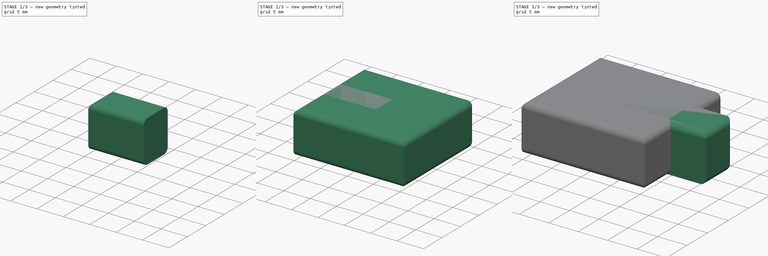
[diagram: build sequence overview — one tinted view per stage of 3, left to right]
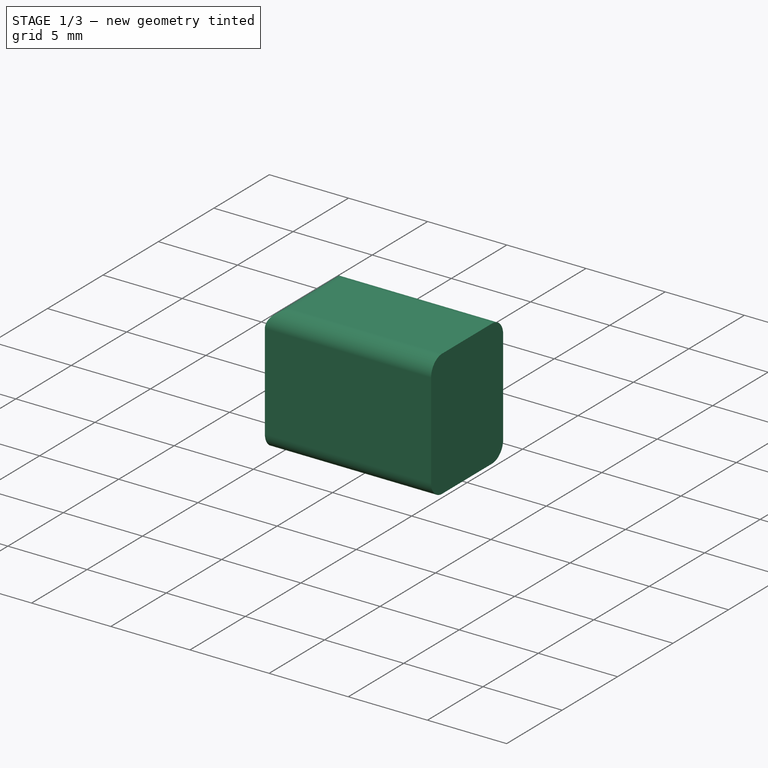
[diagram: stage 1 of 3 — iso view after this stage's code; geometry added in this stage tinted green]
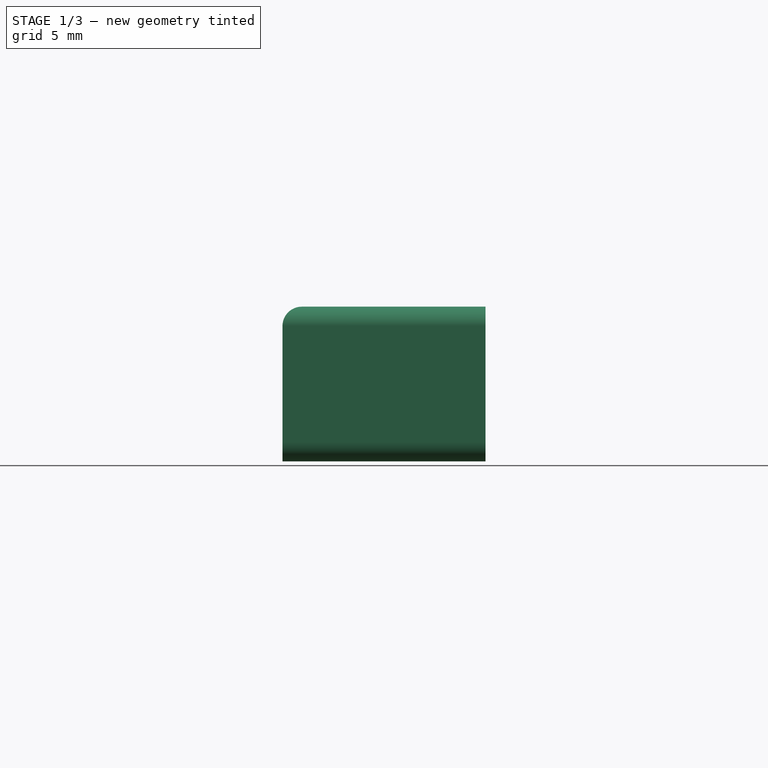
[diagram: stage 1 of 3 — front view after this stage's code; geometry added in this stage tinted green]
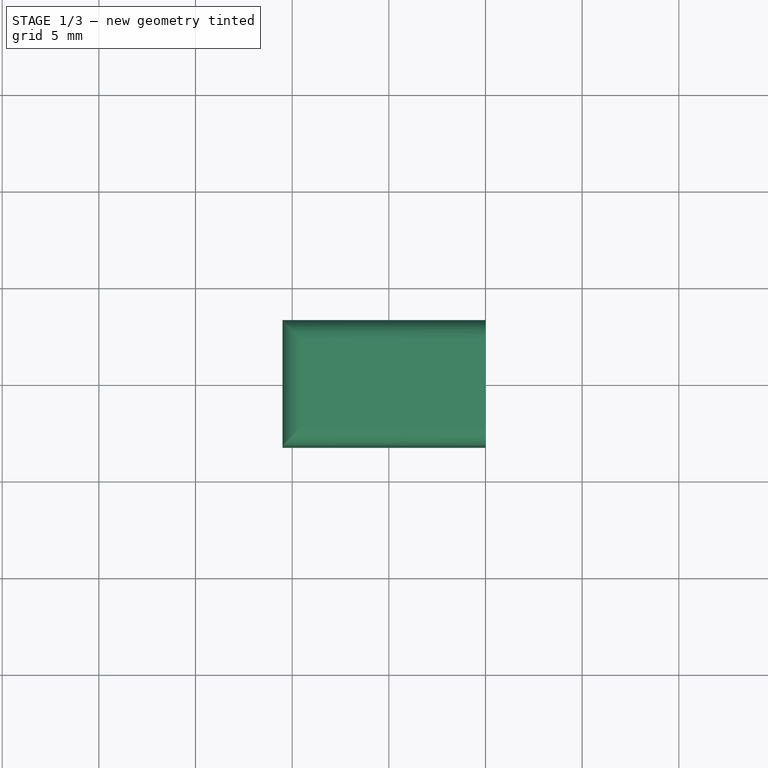
[diagram: stage 1 of 3 — top view after this stage's code; geometry added in this stage tinted green]
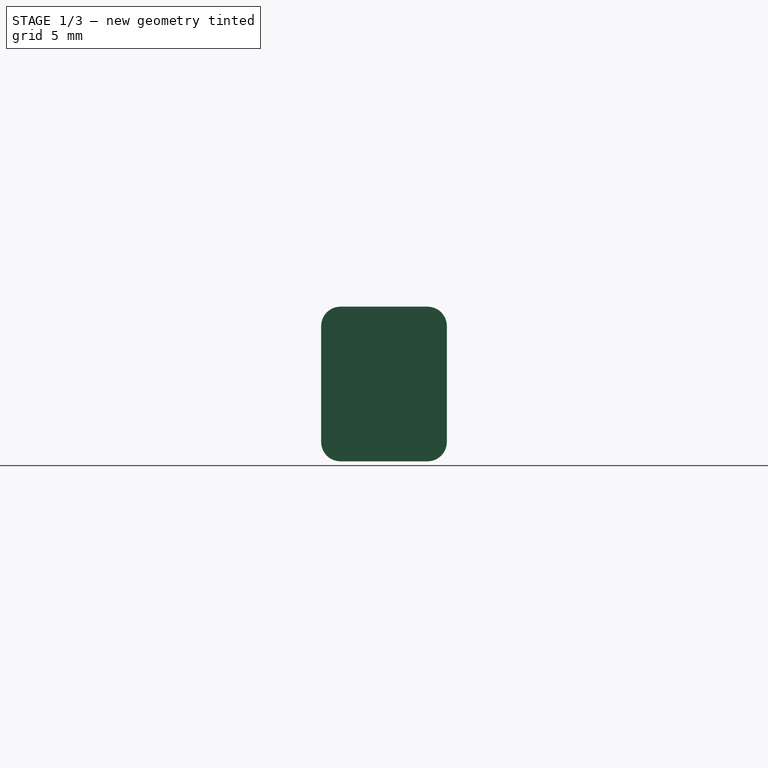
[diagram: stage 1 of 3 — right view after this stage's code; geometry added in this stage tinted green]
FCSTD DOCUMENT  (FreeCAD 0.19R24276 (Git))
Label: Mold2
License: All rights reserved
LicenseURL: http://en.wikipedia.org/wiki/All_rights_reserved
objects: Sketcher::SketchObject×3, Part::Extrusion×3, Part::Fillet×3, Spreadsheet::Sheet×1
note: 9 computed .brp shape members not serialized (recipe doc carries the construction recipe); baked Part::Feature solids carry a one-line shape summary decoded from their .brp

FEATURE [Sketcher::SketchObject] Sketch001
  FullyConstrained = true
  MapMode = 5
  expr: Constraints[10] = Spreadsheet.right_length + Spreadsheet.length / 2
  expr: Constraints[7] = Spreadsheet.right_width
  sketch-geometry (4):
    g0: LineSegment StartX=-10.5 StartY=3.25 StartZ=0 EndX=0 EndY=3.25 EndZ=0
    g1: LineSegment StartX=0 StartY=3.25 StartZ=0 EndX=0 EndY=-3.25 EndZ=0
    g2: LineSegment StartX=0 StartY=-3.25 StartZ=0 EndX=-10.5 EndY=-3.25 EndZ=0
    g3: LineSegment StartX=-10.5 StartY=-3.25 StartZ=0 EndX=-10.5 EndY=3.25 EndZ=0
  constraints (11):
    c: Coincident(g0,g1)
    c: Coincident(g1,g2)
    c: Coincident(g2,g3)
    c: Coincident(g3,g0)
    c: Horizontal(g0)
    c: Horizontal(g2)
    c: Vertical(g1)
    c: DistanceY(g2,g0) = 6.5
    c: Symmetric(g2,g0,g-1)
    c: DistanceX(g0,g-1) = 0
    c: DistanceX(g2,g1) = 10.5
FEATURE [Part::Extrusion] Extrude001
  Base = -> Sketch001
  Dir = (0,0,8)
  DirMode = 0
  FaceMakerClass = Part::FaceMakerExtrusion
  LengthFwd = 0
  LengthRev = 0
  Solid = true
  Symmetric = false
  expr: TaperAngle = Spreadsheet.taper
  expr: .Dir.z = Spreadsheet.height
FEATURE [Part::Fillet] Fillet002
  Base = -> Extrude001
  Edges = 5 edges r=1: [Edge3,Edge4,Edge9,Edge10,Edge12]
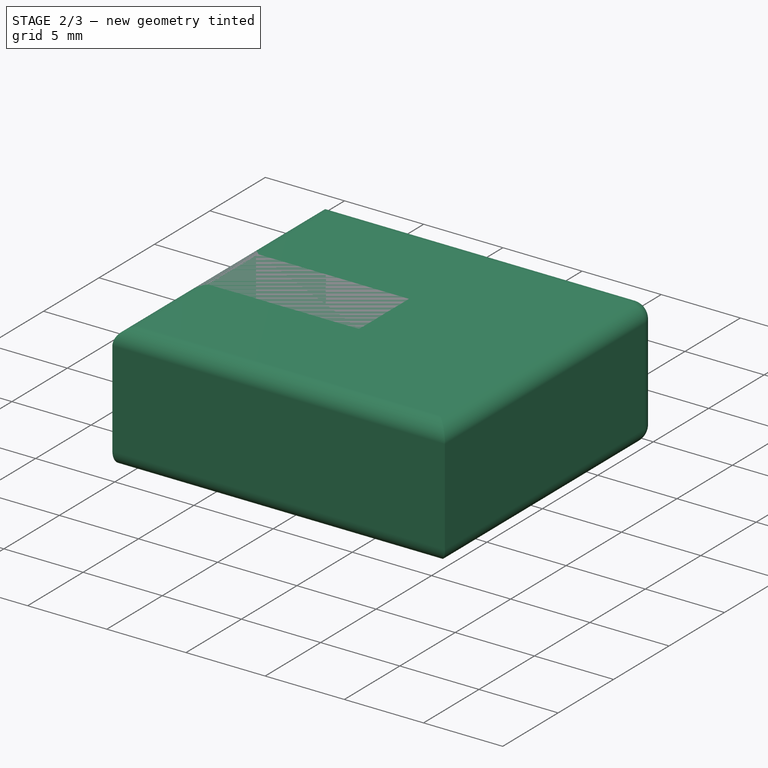
[diagram: stage 2 of 3 — iso view after this stage's code; geometry added in this stage tinted green]
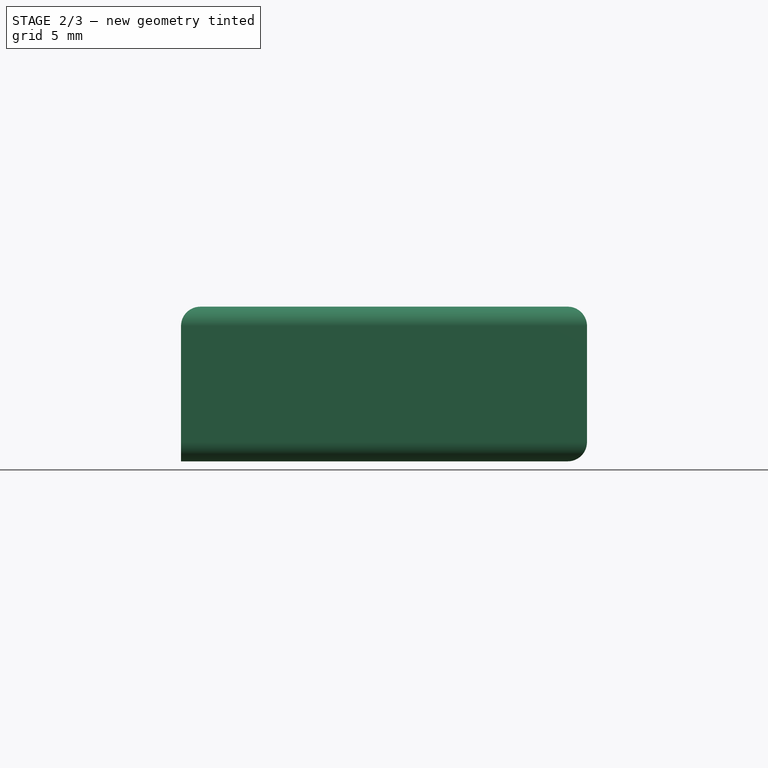
[diagram: stage 2 of 3 — front view after this stage's code; geometry added in this stage tinted green]
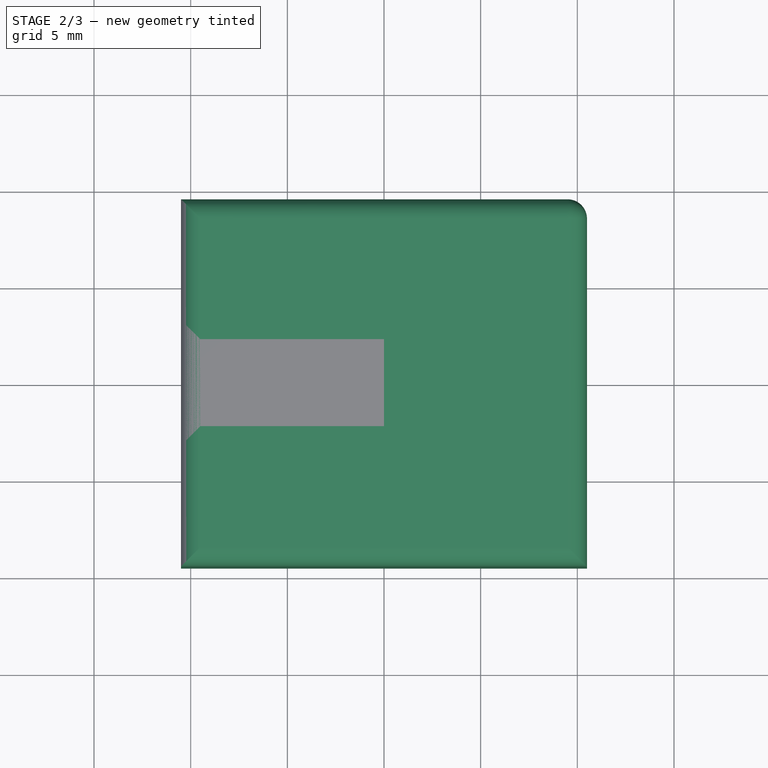
[diagram: stage 2 of 3 — top view after this stage's code; geometry added in this stage tinted green]
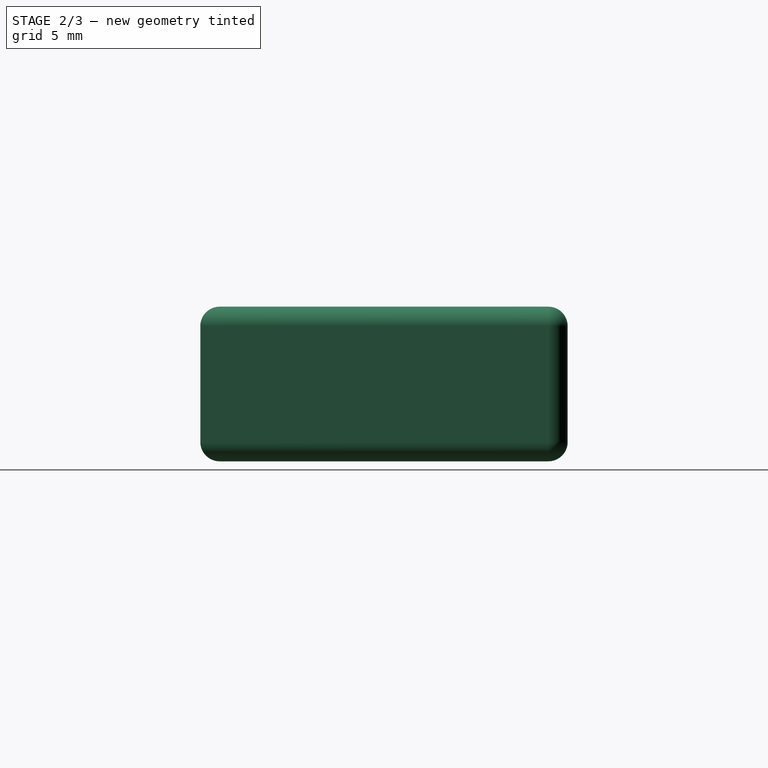
[diagram: stage 2 of 3 — right view after this stage's code; geometry added in this stage tinted green]
FEATURE [Sketcher::SketchObject] Sketch
  FullyConstrained = true
  MapMode = 5
  expr: Constraints[7] = Spreadsheet.width
  expr: Constraints[6] = Spreadsheet.length
  sketch-geometry (4):
    g0: LineSegment StartX=-10.5 StartY=9.5 StartZ=0 EndX=10.5 EndY=9.5 EndZ=0
    g1: LineSegment StartX=10.5 StartY=9.5 StartZ=0 EndX=10.5 EndY=-9.5 EndZ=0
    g2: LineSegment StartX=10.5 StartY=-9.5 StartZ=0 EndX=-10.5 EndY=-9.5 EndZ=0
    g3: LineSegment StartX=-10.5 StartY=-9.5 StartZ=0 EndX=-10.5 EndY=9.5 EndZ=0
  constraints (10):
    c: Coincident(g0,g1)
    c: Coincident(g1,g2)
    c: Coincident(g2,g3)
    c: Coincident(g3,g0)
    c: Horizontal(g2)
    c: Vertical(g1)
    c: DistanceX(g0,g0) = 21
    c: DistanceY(g2,g0) = 19
    c: Symmetric(g0,g0,g-2)
    c: Symmetric(g0,g2,g-1)
FEATURE [Part::Extrusion] Extrude
  Base = -> Sketch
  Dir = (0,0,8)
  DirMode = 0
  FaceMakerClass = Part::FaceMakerExtrusion
  LengthFwd = 0
  LengthRev = 0
  Solid = true
  Symmetric = false
  expr: TaperAngle = Spreadsheet.taper
  expr: .Dir.z = Spreadsheet.height
FEATURE [Part::Fillet] Fillet001
  Base = -> Extrude
  Edges = 8 edges r=1: [Edge2,Edge3,Edge4,Edge6,Edge7,Edge9,Edge10,Edge12]
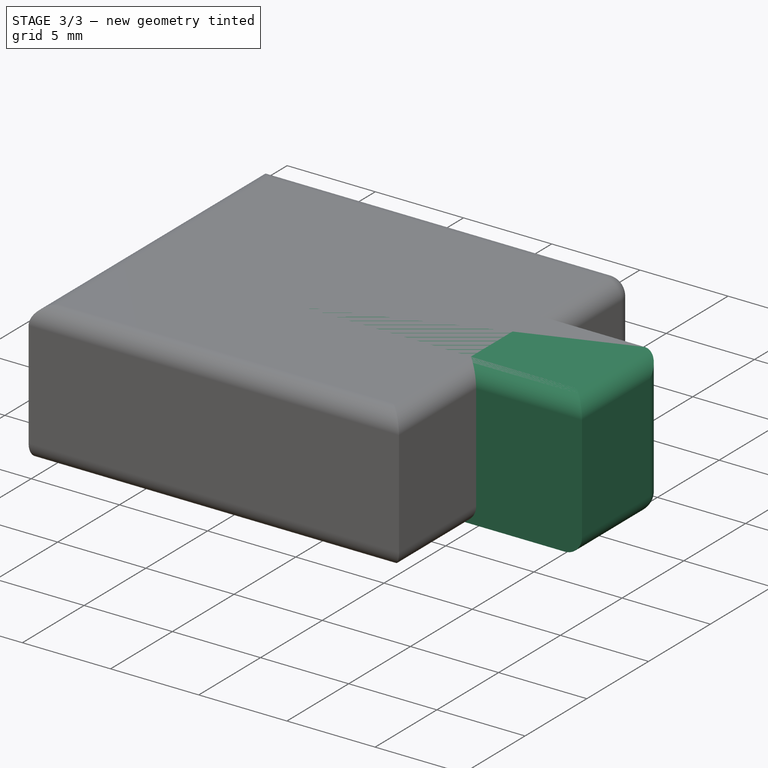
[diagram: stage 3 of 3 — iso view after this stage's code; geometry added in this stage tinted green]
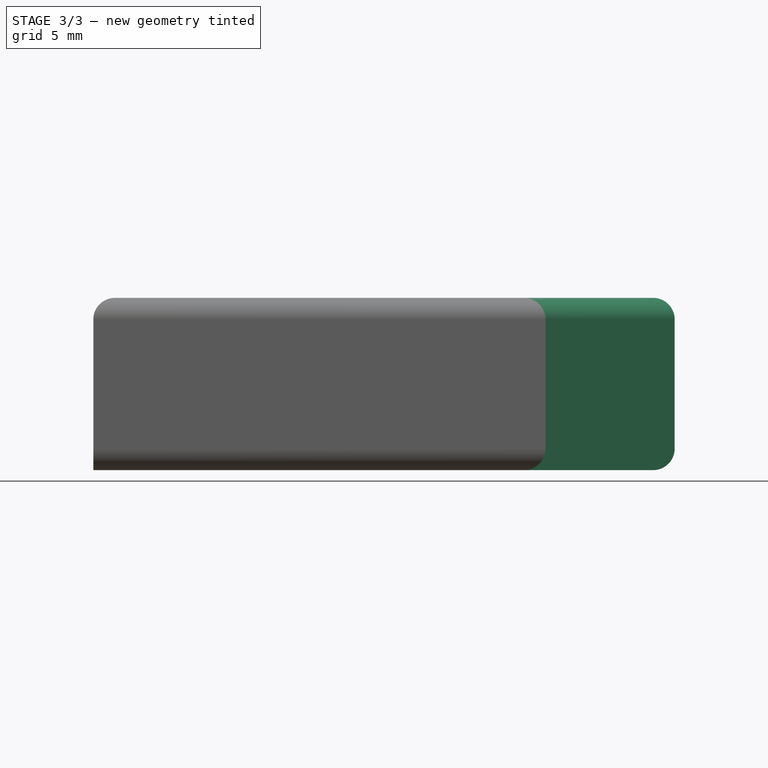
[diagram: stage 3 of 3 — front view after this stage's code; geometry added in this stage tinted green]
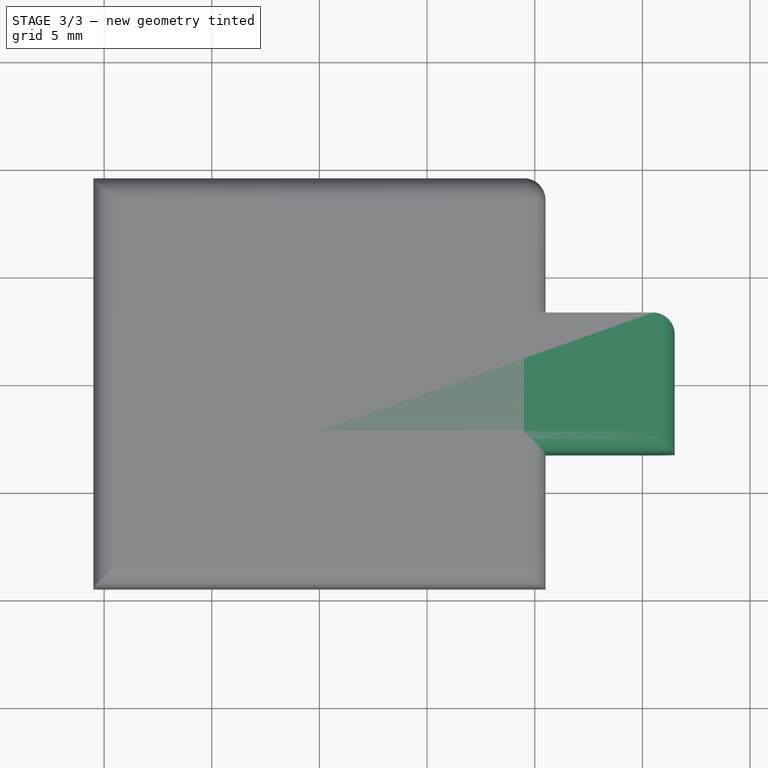
[diagram: stage 3 of 3 — top view after this stage's code; geometry added in this stage tinted green]
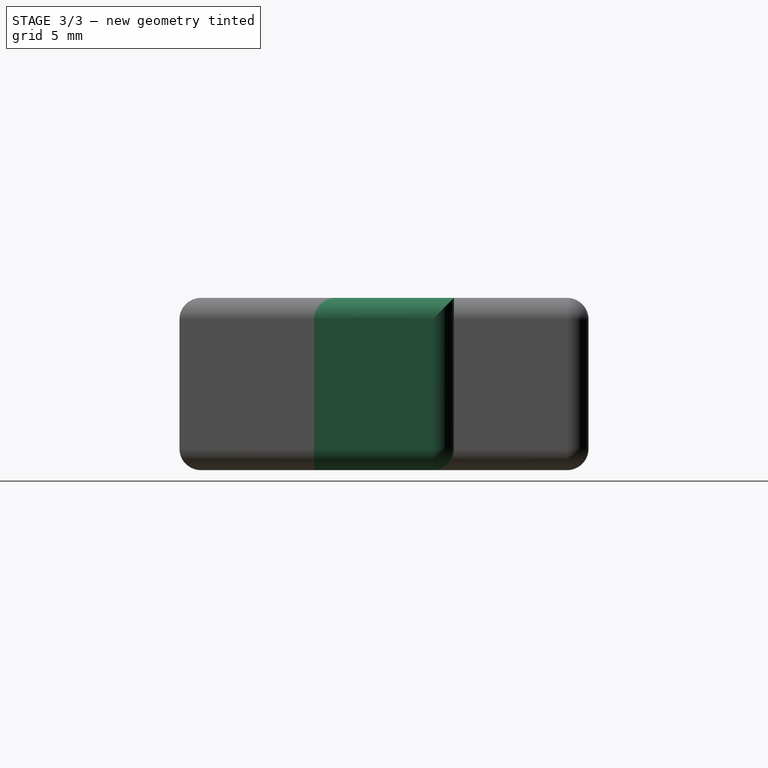
[diagram: stage 3 of 3 — right view after this stage's code; geometry added in this stage tinted green]
FEATURE [Sketcher::SketchObject] Sketch002
  FullyConstrained = true
  MapMode = 5
  expr: Constraints[10] = Spreadsheet.left_length + Spreadsheet.length / 2
  expr: Constraints[9] = Spreadsheet.right_width
  sketch-geometry (4):
    g0: LineSegment StartX=0 StartY=3.25 StartZ=0 EndX=16.5 EndY=3.25 EndZ=0
    g1: LineSegment StartX=16.5 StartY=3.25 StartZ=0 EndX=16.5 EndY=-3.25 EndZ=0
    g2: LineSegment StartX=16.5 StartY=-3.25 StartZ=0 EndX=0 EndY=-3.25 EndZ=0
    g3: LineSegment StartX=0 StartY=-3.25 StartZ=0 EndX=0 EndY=3.25 EndZ=0
  constraints (11):
    c: Coincident(g0,g1)
    c: Coincident(g1,g2)
    c: Coincident(g2,g3)
    c: Coincident(g3,g0)
    c: Horizontal(g0)
    c: Horizontal(g2)
    c: Vertical(g3)
    c: PointOnObject(g0,g-2)
    c: Symmetric(g0,g1,g-1)
    c: DistanceY(g1,g0) = 6.5
    c: DistanceX(g0,g0) = 16.5
FEATURE [Part::Extrusion] Extrude004
  Base = -> Sketch002
  Dir = (0,0,8)
  DirMode = 0
  FaceMakerClass = Part::FaceMakerExtrusion
  LengthFwd = 0
  LengthRev = 0
  Solid = true
  Symmetric = false
  expr: TaperAngle = Spreadsheet.taper
  expr: .Dir.z = Spreadsheet.height
FEATURE [Spreadsheet::Sheet] Spreadsheet  label="data"
  cells = A1=taper; B1(taper)=0; H1=-0.5; A2=height; B2(height)=8; D2=5; E2=5; G2=6; H2=10; A3=length; B3(length)==21mm; D3==27.5mm; E3==29mm; F3==29mm; G3==31mm; H3==20mm; I3==27mm; J3==20mm; K3==26.5mm; A4=width; B4(width)==19mm; D4==21.5mm; E4==21mm; F4==21mm; G4==22mm; H4==25.5mm; I4==22.5mm; J4==22.5mm; K4==20.5mm; A5=left_length; B5(left_length)==6mm; D5==4mm; E5==4mm; F5==4mm; G5==5mm; H5==5mm; I5==3mm; J5==3mm; K5==5mm; A6=left_width; B6(left_width)==6.5mm; D6==14.5mm; E6==13mm; F6==13mm; G6==13.5mm; H6==13.5mm; J6==12mm; K6==11.5mm; A7=right_length; B7(right_length)==0mm; D7==4mm; E7==0mm; F7==4mm; G7==5mm; H7==0mm; I7==0mm; A8=right_width; B8(right_width)==6.5mm; D8==14.5mm; E8==13mm; F8==13mm; G8==13.5mm; B9=Chvery 2; D10=Boss 302; E10=Kia wo; F10=Kia w; G10=Grand Cross; H10=Urus; I10=Charger; J10=Impala; K10=Demon; C11=volume; D11=2; E11=3.31; F11=3.51; G11=5.82; C12=density; D12=7.28; E12=7.28; F12=7.28; G12=7.28; C13=mass; D13==D12 * D11; E13==E12 * E11; F13==F12 * F11; G13==G12 * G11; E15=3.11; E16=7.28; E17==E16 * E15
FEATURE [Part::Fillet] Fillet
  Base = -> Extrude004
  Edges = 5 edges r=1: [Edge2,Edge3,Edge6,Edge7,Edge10]
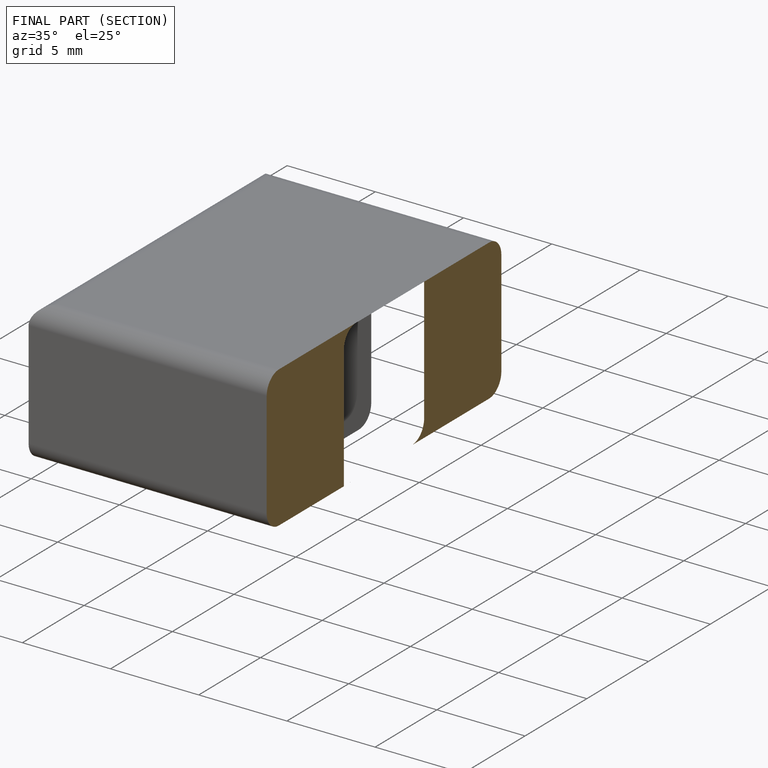
[diagram: finished part — half-section view (interior)]
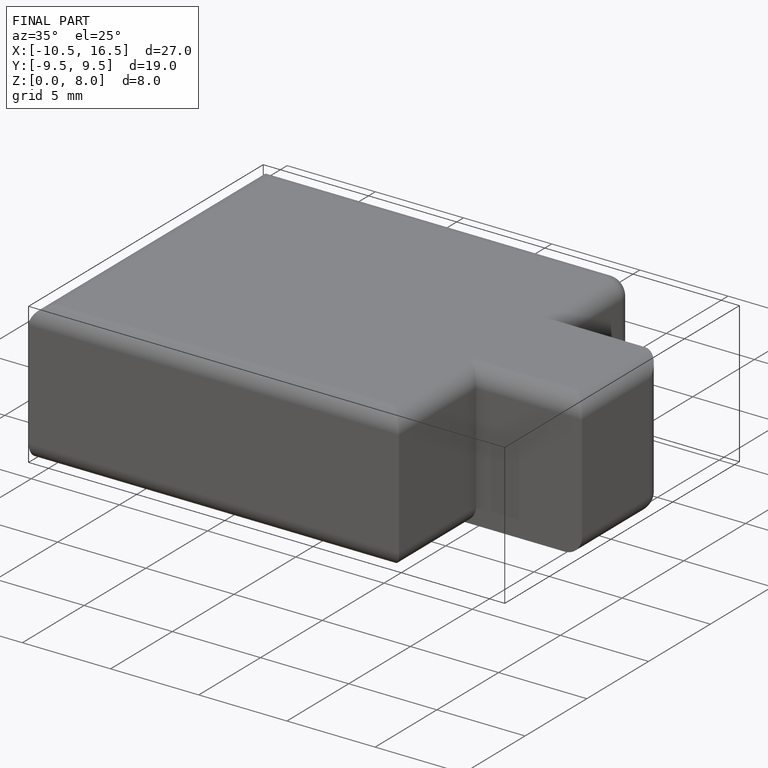
[diagram: finished part — iso view with bounding-box wireframe]
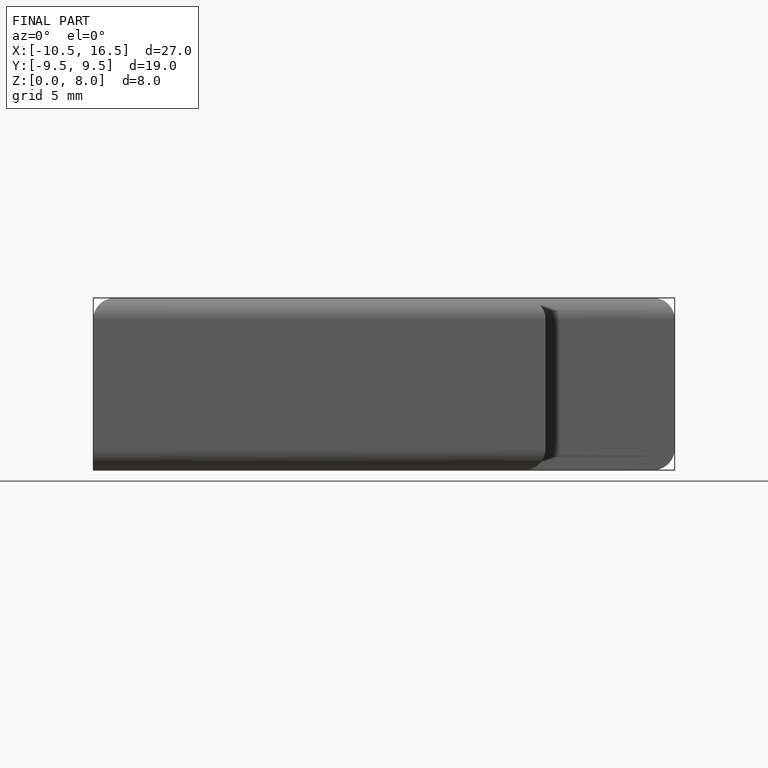
[diagram: finished part — front view with bounding-box wireframe]
